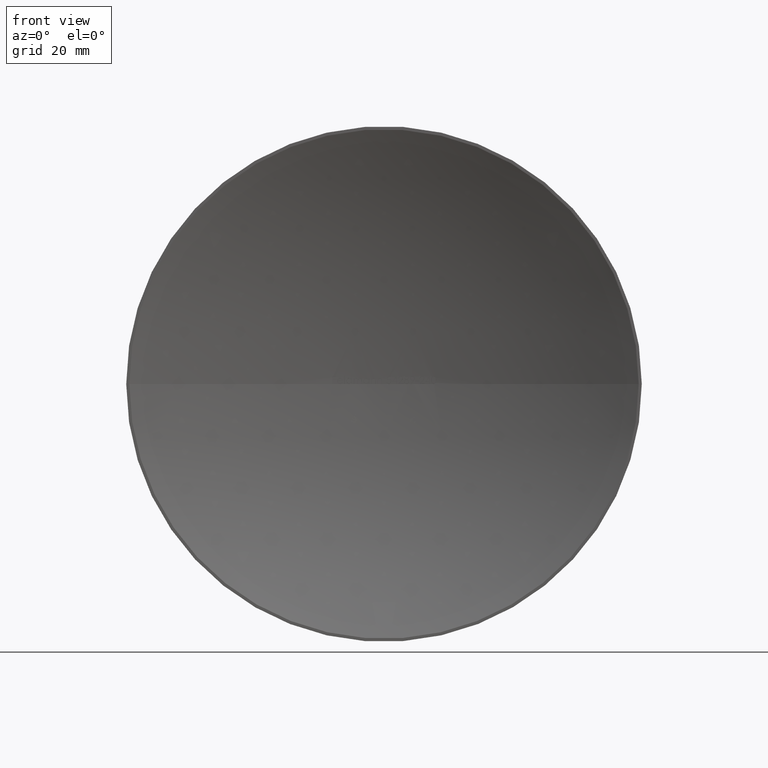
[diagram: clean part render]
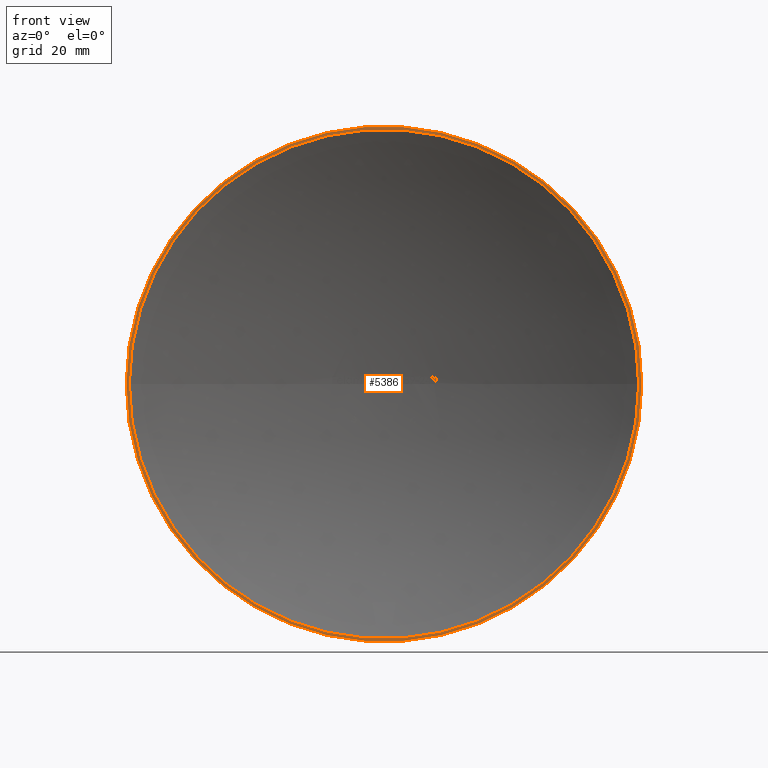
[diagram: same view with one face highlighted and labeled with its STEP entity id]
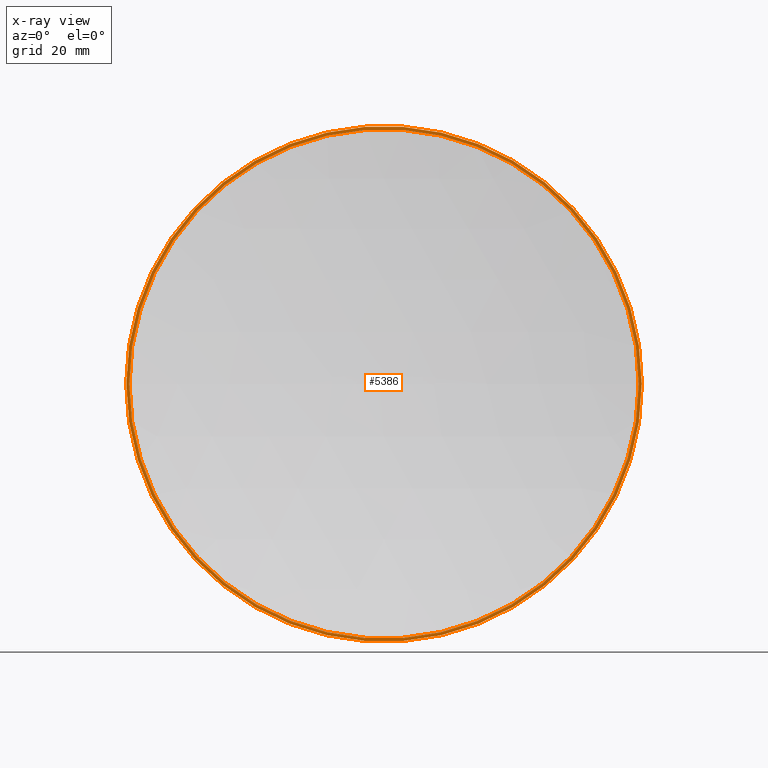
[diagram: x-ray of the same camera — body ghosted, the highlighted face saturated]
A machine part, front view. The second image highlights one B-rep face of the part: STEP entity #5386.
The next image is the same camera in x-ray: the body ghosted, the highlighted face saturated — about 0% of this face is hidden behind the body in this view.
In plain terms, the highlighted planar face has unit normal (-0, -1, 0).
Its self-contained STEP definition (entity closure, byte-faithful):
#116 = ORIENTED_EDGE ( 'NONE', *, *, #2315, .F. ) ;
#678 = CARTESIAN_POINT ( 'NONE',  ( -9.258329801553546800E-014, 4.336808689942017700E-013, 0.0000000000000000000 ) ) ;
#1245 = CIRCLE ( 'NONE', #4490, 44.50000000000008500 ) ;
#1573 = CIRCLE ( 'NONE', #13200, 43.96305266925860900 ) ;
#2153 = DIRECTION ( 'NONE',  ( 1.000000000000000000, -9.745610317425236300E-015, 0.0000000000000000000 ) ) ;
#2246 = CARTESIAN_POINT ( 'NONE',  ( 44.50000000000000000, -3.002203464925430900E-015, 0.0000000000000000000 ) ) ;
#2315 = EDGE_CURVE ( 'NONE', #12752, #10664, #1573, .T. ) ;
#2535 = CIRCLE ( 'NONE', #13308, 43.96305266925860900 ) ;
#2782 = AXIS2_PLACEMENT_3D ( 'NONE', #2246, #11891, #8479 ) ;
#3459 = CIRCLE ( 'NONE', #10609, 44.50000000000008500 ) ;
#3472 = FACE_BOUND ( 'NONE', #11664, .T. ) ;
#3570 = EDGE_CURVE ( 'NONE', #3638, #9338, #1245, .T. ) ;
#3638 = VERTEX_POINT ( 'NONE', #8086 ) ;
#3700 = DIRECTION ( 'NONE',  ( 1.000000000000000000, -9.745610317425236300E-015, 0.0000000000000000000 ) ) ;
#3819 = CARTESIAN_POINT ( 'NONE',  ( 44.50000000000000000, 1.209868777898162500E-018, 0.0000000000000000000 ) ) ;
#3870 = EDGE_CURVE ( 'NONE', #10664, #12752, #2535, .T. ) ;
#4442 = CARTESIAN_POINT ( 'NONE',  ( -43.96305266925761400, 8.517342672609945100E-013, 0.0000000000000000000 ) ) ;
#4490 = AXIS2_PLACEMENT_3D ( 'NONE', #678, #7950, #5824 ) ;
#5386 = ADVANCED_FACE ( 'NONE', ( #12081, #3472 ), #8537, .T. ) ;
#5824 = DIRECTION ( 'NONE',  ( 1.000000000000000000, -9.745610317425236300E-015, 0.0000000000000000000 ) ) ;
#5828 = CARTESIAN_POINT ( 'NONE',  ( -9.258329801553551800E-014, 4.284766985662713500E-013, 0.0000000000000000000 ) ) ;
#6279 = DIRECTION ( 'NONE',  ( -9.745610317425236300E-015, -1.000000000000000000, -0.0000000000000000000 ) ) ;
#6573 = EDGE_CURVE ( 'NONE', #9338, #3638, #3459, .T. ) ;
#7198 = CARTESIAN_POINT ( 'NONE',  ( 43.96305266925849500, 1.495944361777769500E-017, -5.383921173215273100E-015 ) ) ;
#7266 = DIRECTION ( 'NONE',  ( 1.000000000000000000, -9.745610317425236300E-015, 0.0000000000000000000 ) ) ;
#7950 = DIRECTION ( 'NONE',  ( -9.745610317425236300E-015, -1.000000000000000000, -0.0000000000000000000 ) ) ;
#8086 = CARTESIAN_POINT ( 'NONE',  ( -44.50000000000017100, 8.673605281196255000E-013, 5.449678256205733800E-015 ) ) ;
#8163 = DIRECTION ( 'NONE',  ( -9.745610317425236300E-015, -1.000000000000000000, -0.0000000000000000000 ) ) ;
#8479 = DIRECTION ( 'NONE',  ( 1.000000000000000000, -9.745610317425236300E-015, 0.0000000000000000000 ) ) ;
#8537 = PLANE ( 'NONE',  #2782 ) ;
#9338 = VERTEX_POINT ( 'NONE', #3819 ) ;
#10149 = ORIENTED_EDGE ( 'NONE', *, *, #3570, .T. ) ;
#10183 = ORIENTED_EDGE ( 'NONE', *, *, #3870, .F. ) ;
#10609 = AXIS2_PLACEMENT_3D ( 'NONE', #13404, #8163, #7266 ) ;
#10664 = VERTEX_POINT ( 'NONE', #4442 ) ;
#10678 = ORIENTED_EDGE ( 'NONE', *, *, #6573, .T. ) ;
#11134 = DIRECTION ( 'NONE',  ( -9.745610317425236300E-015, -1.000000000000000000, -0.0000000000000000000 ) ) ;
#11335 = EDGE_LOOP ( 'NONE', ( #10678, #10149 ) ) ;
#11664 = EDGE_LOOP ( 'NONE', ( #10183, #116 ) ) ;
#11891 = DIRECTION ( 'NONE',  ( -9.745610317425236300E-015, -1.000000000000000000, 0.0000000000000000000 ) ) ;
#12081 = FACE_OUTER_BOUND ( 'NONE', #11335, .T. ) ;
#12499 = CARTESIAN_POINT ( 'NONE',  ( -9.258329801553551800E-014, 4.284766985662713500E-013, 0.0000000000000000000 ) ) ;
#12752 = VERTEX_POINT ( 'NONE', #7198 ) ;
#13200 = AXIS2_PLACEMENT_3D ( 'NONE', #5828, #11134, #3700 ) ;
#13308 = AXIS2_PLACEMENT_3D ( 'NONE', #12499, #6279, #2153 ) ;
#13404 = CARTESIAN_POINT ( 'NONE',  ( -9.258329801553546800E-014, 4.336808689942017700E-013, 0.0000000000000000000 ) ) ;